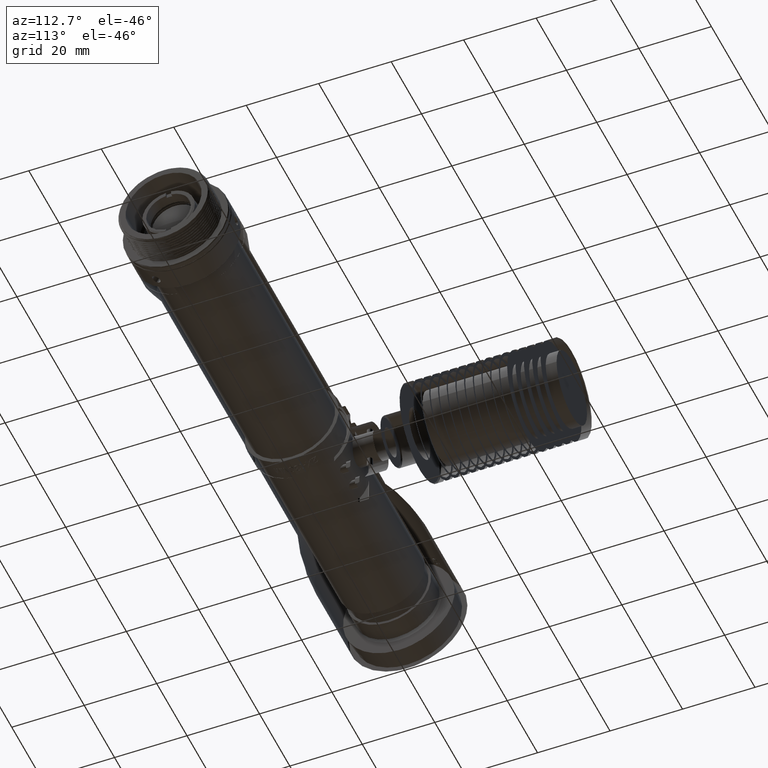
[diagram: clean part render]
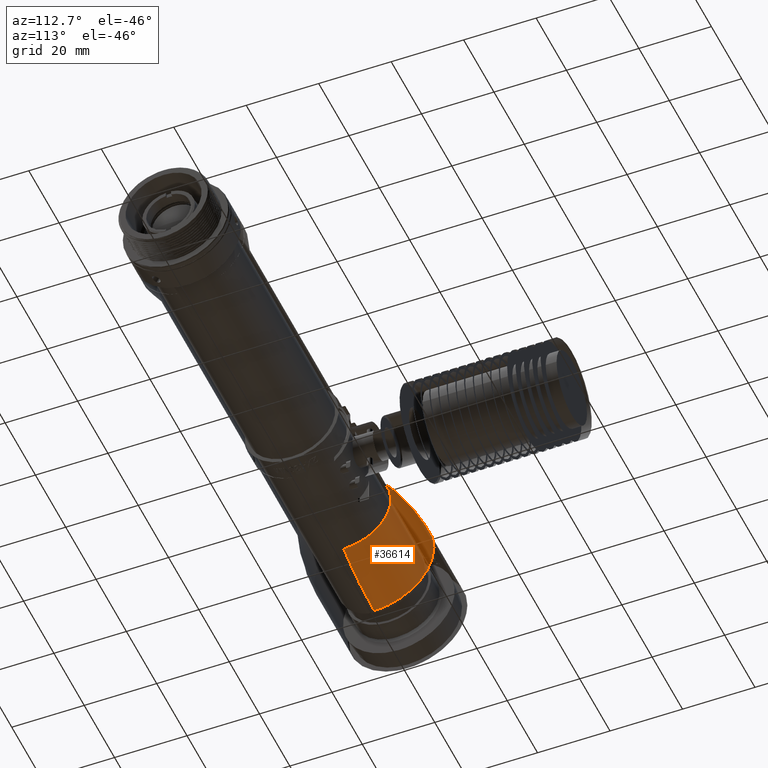
[diagram: same view with one face highlighted and labeled with its STEP entity id]
A machine part, auxiliary view. The second image highlights one B-rep face of the part: STEP entity #36614.
In plain terms, the highlighted face is a freeform B-spline surface patch.
Its self-contained STEP definition (entity closure, byte-faithful):
#50 = CARTESIAN_POINT ( 'NONE',  ( -20.00000000012888890, -16.49999999970498976, 16.49999999934159334 ) ) ;
#71 = VERTEX_POINT ( 'NONE', #1690 ) ;
#265 = CARTESIAN_POINT ( 'NONE',  ( 7.535765138027609941E-10, 12.99999999879690016, -1.180793274501169996E-09 ) ) ;
#704 = CARTESIAN_POINT ( 'NONE',  ( -20.00000000001490008, -4.895334138195259874E-11, 16.49999999934160044 ) ) ;
#1690 = CARTESIAN_POINT ( 'NONE',  ( 3.356336042469099828E-11, 1.379713910231190061E-15, -13.00000000005491962 ) ) ;
#2145 = CARTESIAN_POINT ( 'NONE',  ( -20.00000000061569949, 16.49999999960710184, -2.226045136739664861E-05 ) ) ;
#2314 = EDGE_CURVE ( 'NONE', #13504, #3119, #32825, .T. ) ;
#2636 = EDGE_CURVE ( 'NONE', #71, #25000, #35706, .T. ) ;
#2769 = CARTESIAN_POINT ( 'NONE',  ( -2.973806689624733520E-10, 12.99999999917635307, -5.845572394660550520E-05 ) ) ;
#3026 = ORIENTED_EDGE ( 'NONE', *, *, #19144, .T. ) ;
#3119 = VERTEX_POINT ( 'NONE', #36042 ) ;
#3891 = CARTESIAN_POINT ( 'NONE',  ( -20.00000000000000000, 16.49999999974350118, -4.452058805651610071E-05 ) ) ;
#4288 = CARTESIAN_POINT ( 'NONE',  ( -20.00000000061569949, 16.49999999960709829, -3.144773330769359793E-10 ) ) ;
#5110 = CARTESIAN_POINT ( 'NONE',  ( 3.356336042469099828E-11, 1.379713910231190061E-15, -13.00000000005491962 ) ) ;
#6770 = CARTESIAN_POINT ( 'NONE',  ( 1.226898582729059769E-09, -1.870811093463360010E-10, 12.99999999780320081 ) ) ;
#6992 = CARTESIAN_POINT ( 'NONE',  ( 1.904713957128819328E-10, 12.99999999879689305, -13.00000000016480506 ) ) ;
#7210 = CARTESIAN_POINT ( 'NONE',  ( 1.006883465493050072E-10, -1.870811093463360010E-10, -13.00000000016479973 ) ) ;
#7425 = CARTESIAN_POINT ( 'NONE',  ( -9.693749999828895625, 16.49999999950051333, -7.609007666456280845E-10 ) ) ;
#9104 = CARTESIAN_POINT ( 'NONE',  ( -20.00000000000995115, -3.263421380982265094E-11, 16.49999999956105157 ) ) ;
#10149 = CARTESIAN_POINT ( 'NONE',  ( -9.693750000657571420, -1.201323068115729838E-10, -16.50000000038150105 ) ) ;
#10372 = CARTESIAN_POINT ( 'NONE',  ( -20.00000000155829127, -16.49999999970498976, -16.49999999997060840 ) ) ;
#10593 = CARTESIAN_POINT ( 'NONE',  ( -20.00000000001490008, -4.895334138195259874E-11, 16.49999999934160044 ) ) ;
#11119 =( BOUNDED_CURVE ( )  B_SPLINE_CURVE ( 2, ( #14399, #24477, #17527 ),
 .UNSPECIFIED., .F., .T. ) 
 B_SPLINE_CURVE_WITH_KNOTS ( ( 3, 3 ),
 ( 3.440555974432740026E-12, 0.3464913329428389588 ),
 .UNSPECIFIED. ) 
 CURVE ( )  GEOMETRIC_REPRESENTATION_ITEM ( )  RATIONAL_B_SPLINE_CURVE ( ( 1.000000000000000000, 0.9850304671527099210, 1.000000000000000000 ) ) 
 REPRESENTATION_ITEM ( '' )  );
#11326 = CARTESIAN_POINT ( 'NONE',  ( -9.693750000657571420, -1.201323068115729838E-10, -16.50000000038149750 ) ) ;
#11970 = CARTESIAN_POINT ( 'NONE',  ( -1.486894802612711901E-10, 12.99999999906250103, -0.0001169102669768365974 ) ) ;
#13504 = VERTEX_POINT ( 'NONE', #3891 ) ;
#14376 = CARTESIAN_POINT ( 'NONE',  ( -9.693749999114190885, 16.49999999950049201, 16.49999999885970681 ) ) ;
#14399 = CARTESIAN_POINT ( 'NONE',  ( -20.00000000000995115, -3.263421380982265094E-11, 16.49999999956105157 ) ) ;
#15792 = ORIENTED_EDGE ( 'NONE', *, *, #2636, .T. ) ;
#15806 = CARTESIAN_POINT ( 'NONE',  ( -20.00000000000000000, 16.49999999974350118, -4.452058805651610071E-05 ) ) ;
#15845 = CARTESIAN_POINT ( 'NONE',  ( 1.904705882969552737E-10, 12.99988309023627231, -13.00000000016480506 ) ) ;
#16198 = CARTESIAN_POINT ( 'NONE',  ( 2.657269811478749279E-10, 12.99999999917634952, 12.99999999818265195 ) ) ;
#16413 = VERTEX_POINT ( 'NONE', #29876 ) ;
#17092 = CARTESIAN_POINT ( 'NONE',  ( -1.486894802612711901E-10, 12.99999999906250103, -0.0001169102669768365974 ) ) ;
#17418 = ORIENTED_EDGE ( 'NONE', *, *, #22728, .T. ) ;
#17527 = CARTESIAN_POINT ( 'NONE',  ( 8.179323884860399496E-10, -1.247196782036648093E-10, 12.99999999853546129 ) ) ;
#17648 =( BOUNDED_SURFACE ( )  B_SPLINE_SURFACE ( 2, 2, ( 
 ( #704, #50, #34757, #10372, #20633, #34980, #4288, #37690, #10593 ),
 ( #38126, #24015, #27385, #40831, #10149, #34540, #7425, #14376, #23800 ),
 ( #6770, #28041, #20414, #24237, #7210, #6992, #265, #41048, #20852 ) ),
 .UNSPECIFIED., .F., .T., .T. ) 
 B_SPLINE_SURFACE_WITH_KNOTS ( ( 3, 3 ),
 ( 3, 2, 2, 2, 3 ),
 ( 3.440555974432740026E-12, 0.3464913329428389588 ),
 ( -3.141592653589790007, -1.570796326794899889, 0.000000000000000000, 1.570796326794899889, 3.141592653589790007 ),
 .UNSPECIFIED. ) 
 GEOMETRIC_REPRESENTATION_ITEM ( )  RATIONAL_B_SPLINE_SURFACE ( (
 ( 1.000000000000000000, 0.7071067811865480168, 1.000000000000000000, 0.7071067811865480168, 1.000000000000000000, 0.7071067811865480168, 1.000000000000000000, 0.7071067811865480168, 1.000000000000000000),
 ( 0.9850304671527099210, 0.6965217229990339209, 0.9850304671527099210, 0.6965217229990339209, 0.9850304671527099210, 0.6965217229990339209, 0.9850304671527099210, 0.6965217229990339209, 0.9850304671527099210),
 ( 1.000000000000000000, 0.7071067811865480168, 1.000000000000000000, 0.7071067811865480168, 1.000000000000000000, 0.7071067811865480168, 1.000000000000000000, 0.7071067811865480168, 1.000000000000000000) ) ) 
 REPRESENTATION_ITEM ( '' )  SURFACE ( )  );
#18899 = CARTESIAN_POINT ( 'NONE',  ( 3.356336042469099828E-11, 1.379713910231190061E-15, -13.00000000005491962 ) ) ;
#19144 = EDGE_CURVE ( 'NONE', #25000, #28091, #37165, .T. ) ;
#20414 = CARTESIAN_POINT ( 'NONE',  ( 5.740104154756069876E-10, -12.99999999917110038, -1.180793274493389949E-09 ) ) ;
#20633 = CARTESIAN_POINT ( 'NONE',  ( -20.00000000144429890, -4.895334138195259874E-11, -16.49999999997060129 ) ) ;
#20852 = CARTESIAN_POINT ( 'NONE',  ( 1.226898582729059769E-09, -1.870811093463360010E-10, 12.99999999780320081 ) ) ;
#21305 = FACE_OUTER_BOUND ( 'NONE', #32548, .T. ) ;
#22233 = ORIENTED_EDGE ( 'NONE', *, *, #34685, .T. ) ;
#22728 = EDGE_CURVE ( 'NONE', #3119, #71, #28261, .T. ) ;
#23800 = CARTESIAN_POINT ( 'NONE',  ( -9.693749999228153058, -1.201323068115729838E-10, 16.49999999885972102 ) ) ;
#24015 = CARTESIAN_POINT ( 'NONE',  ( -9.693749999342109902, -16.49999999974079756, 16.49999999885970681 ) ) ;
#24237 = CARTESIAN_POINT ( 'NONE',  ( 1.090529738572779876E-11, -12.99999999917109506, -13.00000000016480506 ) ) ;
#24477 = CARTESIAN_POINT ( 'NONE',  ( -9.693749999228154834, -1.201323068115729838E-10, 16.49999999885971746 ) ) ;
#25000 = VERTEX_POINT ( 'NONE', #11970 ) ;
#27385 = CARTESIAN_POINT ( 'NONE',  ( -9.693750000056819971, -16.49999999974080822, -7.609007666357560974E-10 ) ) ;
#28038 = CARTESIAN_POINT ( 'NONE',  ( -20.00000000000000000, 16.49999999974350118, -4.452058805651610071E-05 ) ) ;
#28041 = CARTESIAN_POINT ( 'NONE',  ( 1.137115533565490314E-09, -12.99999999917109506, 12.99999999780319726 ) ) ;
#28091 = VERTEX_POINT ( 'NONE', #35737 ) ;
#28261 =( BOUNDED_CURVE ( )  B_SPLINE_CURVE ( 2, ( #35927, #11326, #18899 ),
 .UNSPECIFIED., .F., .F. ) 
 B_SPLINE_CURVE_WITH_KNOTS ( ( 3, 3 ),
 ( 3.440555974432740026E-12, 0.3464913329428389588 ),
 .UNSPECIFIED. ) 
 CURVE ( )  GEOMETRIC_REPRESENTATION_ITEM ( )  RATIONAL_B_SPLINE_CURVE ( ( 1.000000000000000000, 0.9850304671527099210, 1.000000000000000000 ) ) 
 REPRESENTATION_ITEM ( '' )  );
#29075 = EDGE_CURVE ( 'NONE', #16413, #28091, #11119, .T. ) ;
#29520 = CARTESIAN_POINT ( 'NONE',  ( -1.486894802612711901E-10, 12.99999999906250103, -0.0001169102669768365974 ) ) ;
#29876 = CARTESIAN_POINT ( 'NONE',  ( -20.00000000000995115, -3.263421380982265094E-11, 16.49999999956105157 ) ) ;
#29878 = CARTESIAN_POINT ( 'NONE',  ( 8.179323884860399496E-10, -1.247196782036648093E-10, 12.99999999853546129 ) ) ;
#31397 =( BOUNDED_CURVE ( )  B_SPLINE_CURVE ( 2, ( #9104, #39794, #35541, #2145, #15806 ),
 .UNSPECIFIED., .F., .T. ) 
 B_SPLINE_CURVE_WITH_KNOTS ( ( 3, 2, 3 ),
 ( 0.000000000000000000, 0.9999980920903128734, 1.000000000000000000 ),
 .UNSPECIFIED. ) 
 CURVE ( )  GEOMETRIC_REPRESENTATION_ITEM ( )  RATIONAL_B_SPLINE_CURVE ( ( 1.000000000000000000, 0.7071067811865480168, 1.000000000000000000, 0.9999994411851244047, 0.9999988823723811038 ) ) 
 REPRESENTATION_ITEM ( '' )  );
#32059 = CARTESIAN_POINT ( 'NONE',  ( -20.00000000000000000, -3.634657391755730103E-15, -16.49999999999019806 ) ) ;
#32548 = EDGE_LOOP ( 'NONE', ( #36182, #17418, #15792, #3026, #35040, #22233 ) ) ;
#32825 =( BOUNDED_CURVE ( )  B_SPLINE_CURVE ( 2, ( #28038, #35197, #32059 ),
 .UNSPECIFIED., .F., .T. ) 
 B_SPLINE_CURVE_WITH_KNOTS ( ( 3, 3 ),
 ( 0.000000000000000000, 1.000000000000000000 ),
 .UNSPECIFIED. ) 
 CURVE ( )  GEOMETRIC_REPRESENTATION_ITEM ( )  RATIONAL_B_SPLINE_CURVE ( ( 0.9999988823714731634, 0.7071073400013981880, 0.9999999999984755528 ) ) 
 REPRESENTATION_ITEM ( '' )  );
#34540 = CARTESIAN_POINT ( 'NONE',  ( -9.693750000543609247, 16.49999999950049201, -16.50000000038152237 ) ) ;
#34685 = EDGE_CURVE ( 'NONE', #16413, #13504, #31397, .T. ) ;
#34757 = CARTESIAN_POINT ( 'NONE',  ( -20.00000000084359897, -16.49999999970500042, -3.144773330670639923E-10 ) ) ;
#34980 = CARTESIAN_POINT ( 'NONE',  ( -20.00000000133040601, 16.49999999960710184, -16.49999999997060840 ) ) ;
#35040 = ORIENTED_EDGE ( 'NONE', *, *, #29075, .F. ) ;
#35197 = CARTESIAN_POINT ( 'NONE',  ( -20.00000000071468875, 16.49995547939338181, -16.49999999992149213 ) ) ;
#35541 = CARTESIAN_POINT ( 'NONE',  ( -20.00000000061569949, 16.49999999960709829, -3.144773330769359793E-10 ) ) ;
#35706 =( BOUNDED_CURVE ( )  B_SPLINE_CURVE ( 2, ( #5110, #15845, #29520 ),
 .UNSPECIFIED., .F., .T. ) 
 B_SPLINE_CURVE_WITH_KNOTS ( ( 3, 3 ),
 ( 0.000000000000000000, 1.000000000000000000 ),
 .UNSPECIFIED. ) 
 CURVE ( )  GEOMETRIC_REPRESENTATION_ITEM ( )  RATIONAL_B_SPLINE_CURVE ( ( 1.000000000000000000, 0.7071086436957373378, 0.9999962750053088545 ) ) 
 REPRESENTATION_ITEM ( '' )  );
#35737 = CARTESIAN_POINT ( 'NONE',  ( 8.179323884860399496E-10, -1.247196782036648093E-10, 12.99999999853546129 ) ) ;
#35927 = CARTESIAN_POINT ( 'NONE',  ( -20.00000000000000000, -3.634657391755730103E-15, -16.49999999999019806 ) ) ;
#36042 = CARTESIAN_POINT ( 'NONE',  ( -20.00000000000000000, -3.634657391755730103E-15, -16.49999999999019806 ) ) ;
#36182 = ORIENTED_EDGE ( 'NONE', *, *, #2314, .T. ) ;
#36614 = ADVANCED_FACE ( 'NONE', ( #21305 ), #17648, .T. ) ;
#37165 =( BOUNDED_CURVE ( )  B_SPLINE_CURVE ( 2, ( #17092, #2769, #43305, #16198, #29878 ),
 .UNSPECIFIED., .F., .T. ) 
 B_SPLINE_CURVE_WITH_KNOTS ( ( 3, 2, 3 ),
 ( 0.000000000000000000, 6.358963697599553998E-06, 1.000000000000000000 ),
 .UNSPECIFIED. ) 
 CURVE ( )  GEOMETRIC_REPRESENTATION_ITEM ( )  RATIONAL_B_SPLINE_CURVE ( ( 0.9999962750036611725, 0.9999981374891631081, 0.9999999999983524290, 0.7071067811853831708, 0.9999999999983524290 ) ) 
 REPRESENTATION_ITEM ( '' )  );
#37690 = CARTESIAN_POINT ( 'NONE',  ( -19.99999999990100363, 16.49999999960710184, 16.49999999934159334 ) ) ;
#38126 = CARTESIAN_POINT ( 'NONE',  ( -9.693749999228153058, -1.201323068115729838E-10, 16.49999999885972102 ) ) ;
#39794 = CARTESIAN_POINT ( 'NONE',  ( -19.99999999990100363, 16.49999999960709829, 16.49999999934159334 ) ) ;
#40831 = CARTESIAN_POINT ( 'NONE',  ( -9.693750000771526487, -16.49999999974079756, -16.50000000038152237 ) ) ;
#41048 = CARTESIAN_POINT ( 'NONE',  ( 1.316681631892639978E-09, 12.99999999879689305, 12.99999999780319726 ) ) ;
#43305 = CARTESIAN_POINT ( 'NONE',  ( -2.973781369584404447E-10, 12.99999999917635307, -1.180793274455646938E-09 ) ) ;